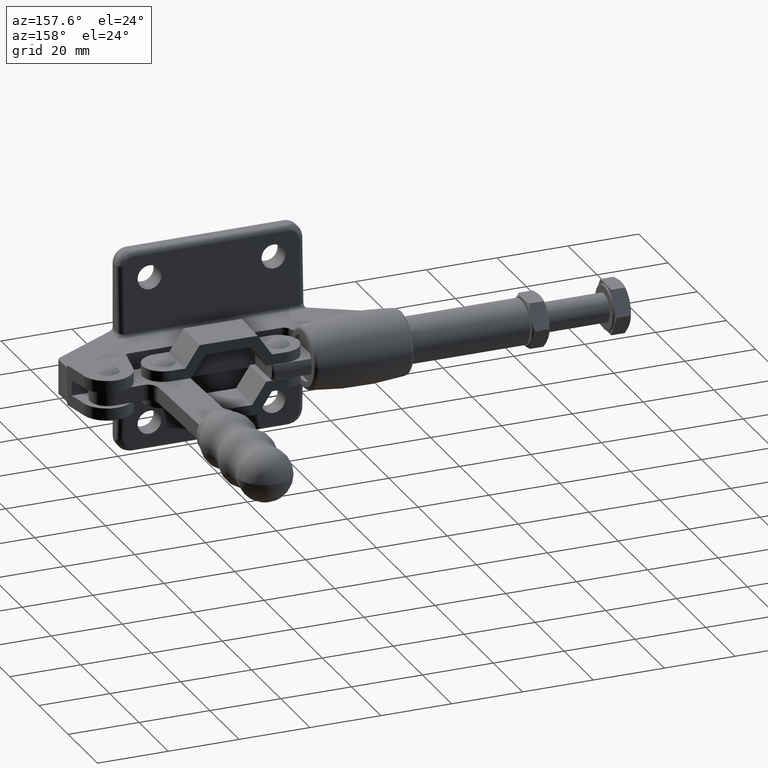
[diagram: clean part render]
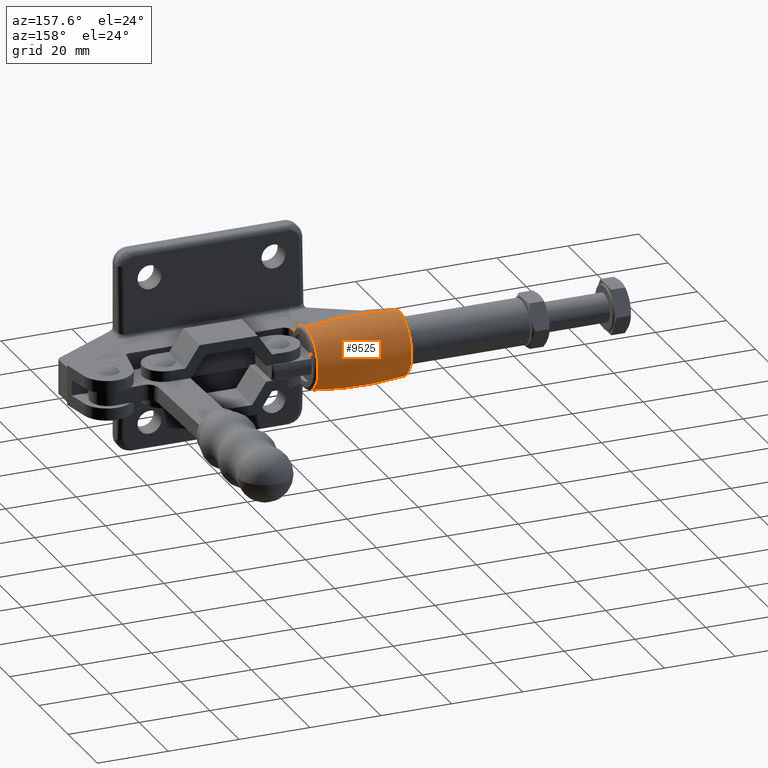
[diagram: same view with one face highlighted and labeled with its STEP entity id]
A machine part, auxiliary view. The second image highlights one B-rep face of the part: STEP entity #9525.
In plain terms, the highlighted toroidal blend (fillet) surface has major radius 88.7704 mm and minor (blend) radius 98.5 mm.
Its self-contained STEP definition (entity closure, byte-faithful):
#104 = DIRECTION ( 'NONE',  ( -1.000000000000000000, 0.0000000000000000000, 0.0000000000000000000 ) ) ;
#1178 = CARTESIAN_POINT ( 'NONE',  ( -76.93863038838921400, 25.40000000000009100, 0.0000000000000000000 ) ) ;
#1260 = ORIENTED_EDGE ( 'NONE', *, *, #1935, .T. ) ;
#1886 = CARTESIAN_POINT ( 'NONE',  ( -62.45293712422170500, 25.40000000000009100, -8.658596408788014300 ) ) ;
#1935 = EDGE_CURVE ( 'NONE', #7638, #7462, #5105, .T. ) ;
#2021 = CARTESIAN_POINT ( 'NONE',  ( -88.71960293708666300, 25.40000000000009100, 9.022510358537410000 ) ) ;
#2172 = AXIS2_PLACEMENT_3D ( 'NONE', #1178, #7131, #7898 ) ;
#2472 = DIRECTION ( 'NONE',  ( -1.000000000000000000, 0.0000000000000000000, 0.0000000000000000000 ) ) ;
#2482 = CARTESIAN_POINT ( 'NONE',  ( -88.71960293708666300, 25.40000000000009100, -9.022510358537410000 ) ) ;
#2922 = EDGE_LOOP ( 'NONE', ( #3372, #1260, #3051, #9094 ) ) ;
#2970 = DIRECTION ( 'NONE',  ( 0.0000000000000000000, -1.000000000000000000, 0.0000000000000000000 ) ) ;
#3010 = CIRCLE ( 'NONE', #3211, 9.022510358537305200 ) ;
#3043 = AXIS2_PLACEMENT_3D ( 'NONE', #7400, #2970, #8168 ) ;
#3051 = ORIENTED_EDGE ( 'NONE', *, *, #7359, .F. ) ;
#3167 = AXIS2_PLACEMENT_3D ( 'NONE', #4404, #9591, #5147 ) ;
#3211 = AXIS2_PLACEMENT_3D ( 'NONE', #4581, #104, #5311 ) ;
#3372 = ORIENTED_EDGE ( 'NONE', *, *, #4302, .T. ) ;
#3621 = AXIS2_PLACEMENT_3D ( 'NONE', #6905, #2472, #7669 ) ;
#4302 = EDGE_CURVE ( 'NONE', #7002, #7638, #5923, .T. ) ;
#4404 = CARTESIAN_POINT ( 'NONE',  ( -76.93863038838921400, 25.40000000000008000, 88.77042745297970300 ) ) ;
#4581 = CARTESIAN_POINT ( 'NONE',  ( -88.71960293708666300, 25.40000000000009100, 0.0000000000000000000 ) ) ;
#5105 = CIRCLE ( 'NONE', #3167, 98.50000000000221700 ) ;
#5147 = DIRECTION ( 'NONE',  ( 0.0000000000000000000, -1.056684350848792700E-016, 1.000000000000000000 ) ) ;
#5311 = DIRECTION ( 'NONE',  ( 0.0000000000000000000, 0.0000000000000000000, 1.000000000000000000 ) ) ;
#5923 = CIRCLE ( 'NONE', #3621, 8.658596408787921900 ) ;
#6330 = CIRCLE ( 'NONE', #3043, 98.50000000000221700 ) ;
#6905 = CARTESIAN_POINT ( 'NONE',  ( -62.45293712422170500, 25.40000000000009100, 0.0000000000000000000 ) ) ;
#7002 = VERTEX_POINT ( 'NONE', #8458 ) ;
#7131 = DIRECTION ( 'NONE',  ( -1.000000000000000000, 0.0000000000000000000, 0.0000000000000000000 ) ) ;
#7254 = FACE_OUTER_BOUND ( 'NONE', #2922, .T. ) ;
#7359 = EDGE_CURVE ( 'NONE', #9189, #7462, #3010, .T. ) ;
#7400 = CARTESIAN_POINT ( 'NONE',  ( -76.93863038838921400, 25.40000000000009100, -88.77042745297970300 ) ) ;
#7462 = VERTEX_POINT ( 'NONE', #2482 ) ;
#7638 = VERTEX_POINT ( 'NONE', #1886 ) ;
#7669 = DIRECTION ( 'NONE',  ( 0.0000000000000000000, 0.0000000000000000000, 1.000000000000000000 ) ) ;
#7898 = DIRECTION ( 'NONE',  ( 0.0000000000000000000, 0.0000000000000000000, 1.000000000000000000 ) ) ;
#8168 = DIRECTION ( 'NONE',  ( 0.0000000000000000000, 0.0000000000000000000, -1.000000000000000000 ) ) ;
#8458 = CARTESIAN_POINT ( 'NONE',  ( -62.45293712422170500, 25.40000000000009100, 8.658596408788014300 ) ) ;
#8904 = EDGE_CURVE ( 'NONE', #7002, #9189, #6330, .T. ) ;
#9094 = ORIENTED_EDGE ( 'NONE', *, *, #8904, .F. ) ;
#9189 = VERTEX_POINT ( 'NONE', #2021 ) ;
#9221 = TOROIDAL_SURFACE ( 'NONE', #2172, -88.77042745297970300, 98.50000000000221700 ) ;
#9525 = ADVANCED_FACE ( 'NONE', ( #7254 ), #9221, .T. ) ;
#9591 = DIRECTION ( 'NONE',  ( 0.0000000000000000000, 1.000000000000000000, 1.224646799147353200E-016 ) ) ;